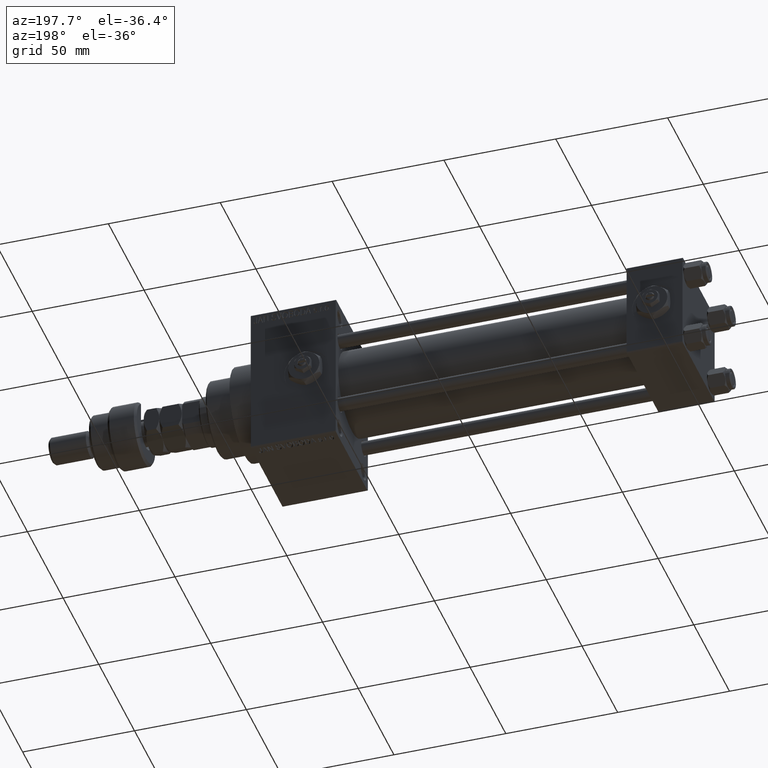
[diagram: clean part render]
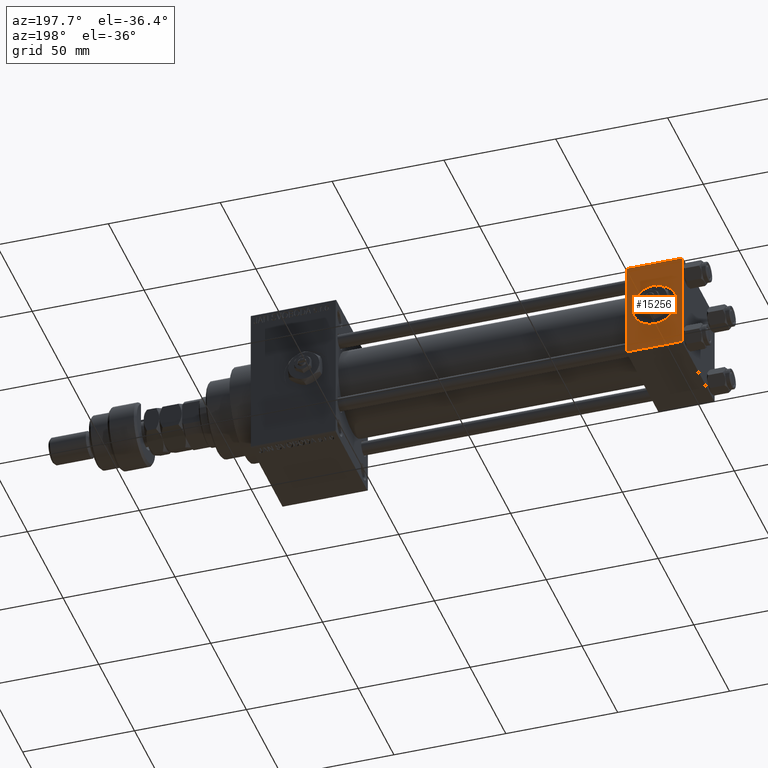
[diagram: same view with one face highlighted and labeled with its STEP entity id]
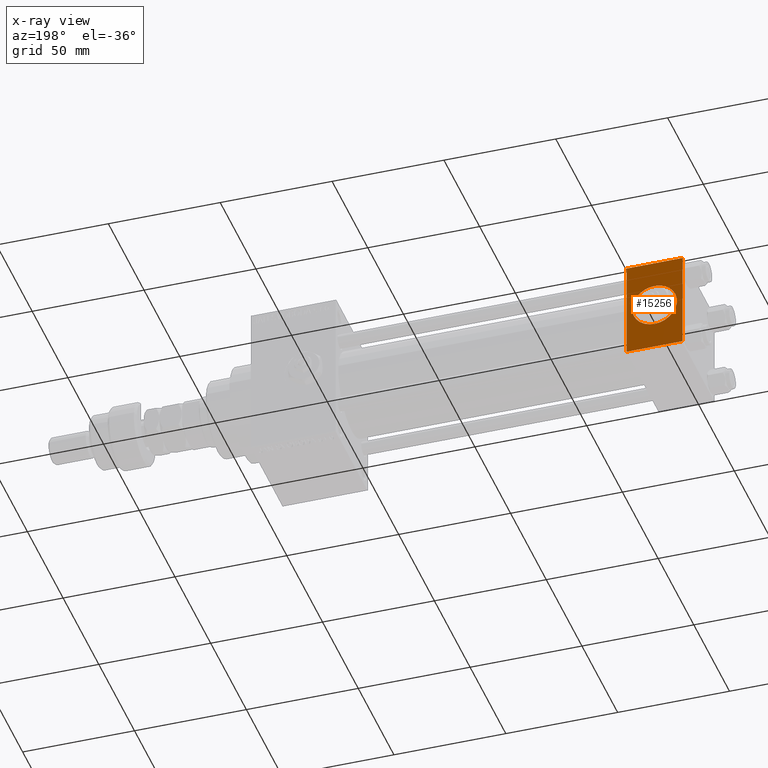
[diagram: x-ray of the same camera — body ghosted, the highlighted face saturated]
A machine part, auxiliary view. The second image highlights one B-rep face of the part: STEP entity #15256.
The next image is the same camera in x-ray: the body ghosted, the highlighted face saturated — about 0% of this face is hidden behind the body in this view.
In plain terms, the highlighted planar face has unit normal (0, 1, 0).
Its self-contained STEP definition (entity closure, byte-faithful):
#790 = CIRCLE ( 'NONE', #36862, 9.999999999999996447 ) ;
#2332 = CARTESIAN_POINT ( 'NONE',  ( 12.50000000000000000, 22.50000000000000000, 0.000000000000000000 ) ) ;
#2446 = ORIENTED_EDGE ( 'NONE', *, *, #11786, .F. ) ;
#3111 = DIRECTION ( 'NONE',  ( 0.000000000000000000, 0.000000000000000000, 1.000000000000000000 ) ) ;
#6006 = VERTEX_POINT ( 'NONE', #39536 ) ;
#6441 = ORIENTED_EDGE ( 'NONE', *, *, #21450, .T. ) ;
#7759 = CARTESIAN_POINT ( 'NONE',  ( 25.00000000000000000, 22.50000000000000000, 22.50000000000000355 ) ) ;
#8621 = VECTOR ( 'NONE', #18069, 1000.000000000000000 ) ;
#9442 = VECTOR ( 'NONE', #17136, 1000.000000000000000 ) ;
#10437 = DIRECTION ( 'NONE',  ( 1.000000000000000000, 0.000000000000000000, 0.000000000000000000 ) ) ;
#10503 = DIRECTION ( 'NONE',  ( 0.000000000000000000, 1.000000000000000000, 0.000000000000000000 ) ) ;
#10870 = CARTESIAN_POINT ( 'NONE',  ( 25.00000000000000000, 22.50000000000000000, -21.99999999999996803 ) ) ;
#10914 = FACE_OUTER_BOUND ( 'NONE', #14893, .T. ) ;
#11786 = EDGE_CURVE ( 'NONE', #27638, #6006, #790, .T. ) ;
#12825 = VECTOR ( 'NONE', #13942, 1000.000000000000000 ) ;
#13942 = DIRECTION ( 'NONE',  ( -1.000000000000000000, 0.000000000000000000, 0.000000000000000000 ) ) ;
#14341 = CARTESIAN_POINT ( 'NONE',  ( 0.000000000000000000, 22.50000000000000000, -21.99999999999996803 ) ) ;
#14893 = EDGE_LOOP ( 'NONE', ( #6441, #48478, #47635, #42084 ) ) ;
#15116 = EDGE_LOOP ( 'NONE', ( #38924, #2446 ) ) ;
#15256 = ADVANCED_FACE ( 'NONE', ( #43994, #10914 ), #15374, .T. ) ;
#15374 = PLANE ( 'NONE',  #30988 ) ;
#17136 = DIRECTION ( 'NONE',  ( 0.000000000000000000, 0.000000000000000000, -1.000000000000000000 ) ) ;
#18069 = DIRECTION ( 'NONE',  ( 0.000000000000000000, 0.000000000000000000, -1.000000000000000000 ) ) ;
#19308 = DIRECTION ( 'NONE',  ( 0.000000000000000000, -0.000000000000000000, 1.000000000000000000 ) ) ;
#19894 = VERTEX_POINT ( 'NONE', #34824 ) ;
#20602 = VECTOR ( 'NONE', #10437, 1000.000000000000000 ) ;
#20680 = VERTEX_POINT ( 'NONE', #14341 ) ;
#21194 = CARTESIAN_POINT ( 'NONE',  ( 0.000000000000000000, 22.50000000000000000, 21.99999999999999645 ) ) ;
#21234 = VERTEX_POINT ( 'NONE', #10870 ) ;
#21450 = EDGE_CURVE ( 'NONE', #19894, #21234, #34177, .T. ) ;
#21811 = CARTESIAN_POINT ( 'NONE',  ( 25.00000000000000000, 22.50000000000000000, -21.99999999999998224 ) ) ;
#22397 = EDGE_CURVE ( 'NONE', #21234, #20680, #41774, .T. ) ;
#22865 = EDGE_CURVE ( 'NONE', #6006, #27638, #38855, .T. ) ;
#25435 = LINE ( 'NONE', #37262, #8621 ) ;
#27230 = LINE ( 'NONE', #30901, #20602 ) ;
#27638 = VERTEX_POINT ( 'NONE', #39831 ) ;
#30901 = CARTESIAN_POINT ( 'NONE',  ( 25.00000000000000000, 22.50000000000000000, 21.99999999999999645 ) ) ;
#30988 = AXIS2_PLACEMENT_3D ( 'NONE', #7759, #47401, #19308 ) ;
#31219 = CARTESIAN_POINT ( 'NONE',  ( 12.50000000000000000, 22.50000000000000000, 0.000000000000000000 ) ) ;
#34177 = LINE ( 'NONE', #49430, #9442 ) ;
#34824 = CARTESIAN_POINT ( 'NONE',  ( 25.00000000000000000, 22.50000000000000000, 21.99999999999999645 ) ) ;
#34923 = DIRECTION ( 'NONE',  ( 0.000000000000000000, 0.000000000000000000, 1.000000000000000000 ) ) ;
#35500 = AXIS2_PLACEMENT_3D ( 'NONE', #31219, #47770, #3111 ) ;
#36862 = AXIS2_PLACEMENT_3D ( 'NONE', #2332, #10503, #34923 ) ;
#37262 = CARTESIAN_POINT ( 'NONE',  ( 0.000000000000000000, 22.50000000000000000, 22.50000000000000355 ) ) ;
#38855 = CIRCLE ( 'NONE', #35500, 9.999999999999996447 ) ;
#38924 = ORIENTED_EDGE ( 'NONE', *, *, #22865, .F. ) ;
#39536 = CARTESIAN_POINT ( 'NONE',  ( 12.50000000000000000, 22.50000000000000000, 9.999999999999996447 ) ) ;
#39831 = CARTESIAN_POINT ( 'NONE',  ( 12.50000000000000178, 22.50000000000000000, -9.999999999999996447 ) ) ;
#40782 = EDGE_CURVE ( 'NONE', #51172, #20680, #25435, .T. ) ;
#41774 = LINE ( 'NONE', #21811, #12825 ) ;
#42084 = ORIENTED_EDGE ( 'NONE', *, *, #48227, .T. ) ;
#43994 = FACE_BOUND ( 'NONE', #15116, .T. ) ;
#47401 = DIRECTION ( 'NONE',  ( -0.000000000000000000, 1.000000000000000000, 0.000000000000000000 ) ) ;
#47635 = ORIENTED_EDGE ( 'NONE', *, *, #40782, .F. ) ;
#47770 = DIRECTION ( 'NONE',  ( 0.000000000000000000, 1.000000000000000000, 0.000000000000000000 ) ) ;
#48227 = EDGE_CURVE ( 'NONE', #51172, #19894, #27230, .T. ) ;
#48478 = ORIENTED_EDGE ( 'NONE', *, *, #22397, .T. ) ;
#49430 = CARTESIAN_POINT ( 'NONE',  ( 25.00000000000000000, 22.50000000000000000, 22.50000000000000355 ) ) ;
#51172 = VERTEX_POINT ( 'NONE', #21194 ) ;